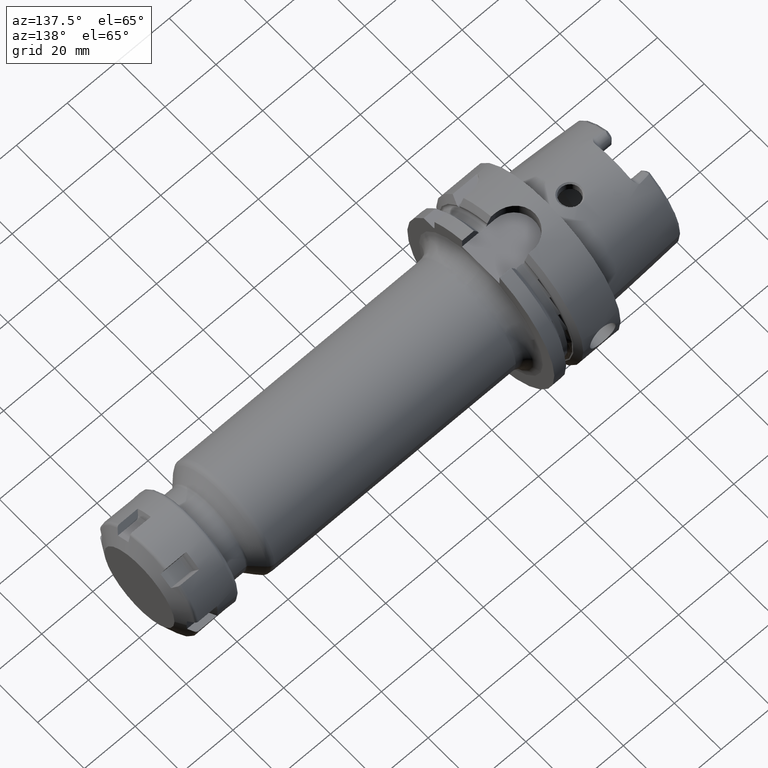
[diagram: clean part render]
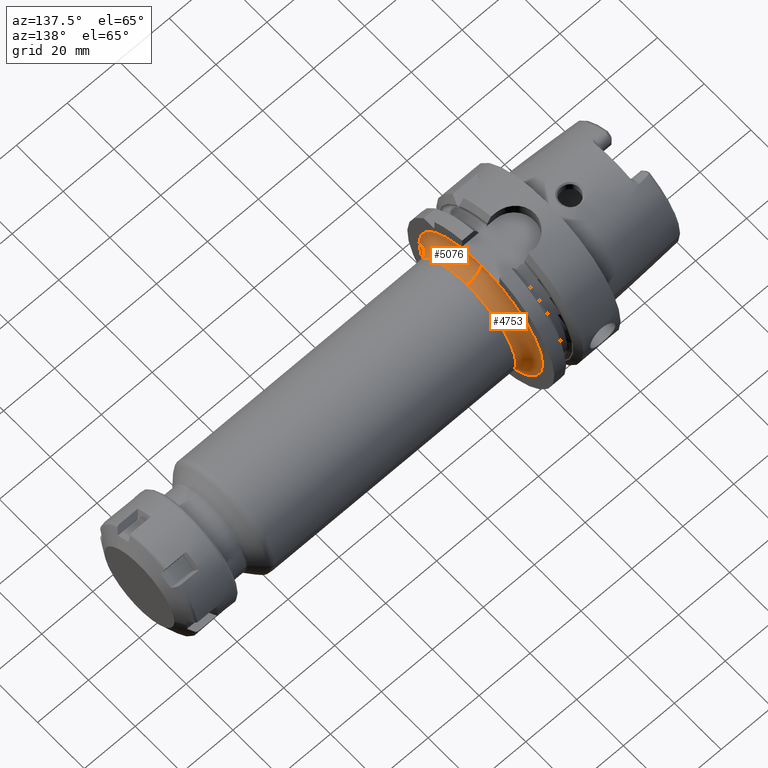
[diagram: same view with one multi-face feature highlighted, each face labeled with its STEP entity id]
A machine part, auxiliary view. The highlighted faces form ONE feature: a constant-radius fillet chain: 2 tangent blend faces with common blend radius 5.5 mm. The faces share edges in the B-rep.
Their STEP definitions:
[1] entity #5076 (Torus):
#1489=CARTESIAN_POINT('',(3.15E1,-2.65E1,2.406547183753E-13));
#1490=DIRECTION('',(0.E0,0.E0,-1.E0));
#1491=DIRECTION('',(-1.E0,0.E0,0.E0));
#1492=AXIS2_PLACEMENT_3D('',#1489,#1490,#1491);
#1533=CARTESIAN_POINT('',(2.6E1,0.E0,0.E0));
#1534=DIRECTION('',(1.E0,0.E0,0.E0));
#1535=DIRECTION('',(0.E0,-8.679259787089E-2,9.962264024582E-1));
#1536=AXIS2_PLACEMENT_3D('',#1533,#1534,#1535);
#1792=CARTESIAN_POINT('',(2.600090916605E1,2.499095562468E-5,2.64E1));
#1793=CARTESIAN_POINT('',(2.600090917046E1,-2.557801868931E-1,2.64E1));
#1794=CARTESIAN_POINT('',(2.600076640443E1,-7.672271111357E-1,
2.640000004521E1));
#1795=CARTESIAN_POINT('',(2.600026065582E1,-1.534030469007E0,2.639999984178E1));
#1796=CARTESIAN_POINT('',(2.6E1,-2.044741514307E0,2.640000033905E1));
#1797=CARTESIAN_POINT('',(2.6E1,-2.299997399233E0,2.640000033905E1));
#1819=CARTESIAN_POINT('',(3.15E1,2.508561832536E-5,2.649999999999E1));
#1820=DIRECTION('',(0.E0,-9.999999999996E-1,9.466271066177E-7));
#1821=DIRECTION('',(-9.998346970813E-1,-1.721140193647E-8,-1.818181817966E-2));
#1822=AXIS2_PLACEMENT_3D('',#1819,#1820,#1821);
#1829=CARTESIAN_POINT('',(3.15E1,0.E0,0.E0));
#1830=DIRECTION('',(1.E0,0.E0,0.E0));
#1831=DIRECTION('',(0.E0,8.220678666068E-7,9.999999999997E-1));
#1832=AXIS2_PLACEMENT_3D('',#1829,#1830,#1831);
#3155=CARTESIAN_POINT('',(2.6E1,-2.65E1,0.E0));
#3157=VERTEX_POINT('',#3155);
#3159=CARTESIAN_POINT('',(3.15E1,1.726342519874E-5,2.099999999999E1));
#3160=CARTESIAN_POINT('',(3.15E1,-2.1E1,0.E0));
#3161=VERTEX_POINT('',#3159);
#3162=VERTEX_POINT('',#3160);
#3163=CARTESIAN_POINT('',(2.6E1,-2.300003843579E0,2.639999966514E1));
#3164=VERTEX_POINT('',#3163);
#3199=VERTEX_POINT('',#1792);
#5063=CARTESIAN_POINT('',(3.15E1,0.E0,0.E0));
#5064=DIRECTION('',(1.E0,0.E0,0.E0));
#5065=DIRECTION('',(0.E0,1.485959642860E-3,-9.999988959614E-1));
#5066=AXIS2_PLACEMENT_3D('',#5063,#5064,#5065);
#5067=TOROIDAL_SURFACE('',#5066,2.65E1,5.5E0);
#5069=ORIENTED_EDGE('',*,*,#5068,.T.);
#5070=ORIENTED_EDGE('',*,*,#4739,.F.);
#5071=ORIENTED_EDGE('',*,*,#4779,.F.);
#5072=ORIENTED_EDGE('',*,*,#5039,.F.);
#5073=ORIENTED_EDGE('',*,*,#4745,.T.);
#5074=EDGE_LOOP('',(#5069,#5070,#5071,#5072,#5073));
#5075=FACE_OUTER_BOUND('',#5074,.F.);
#5076=ADVANCED_FACE('',(#5075),#5067,.F.);
#1493=CIRCLE('',#1492,5.5E0);
#1537=CIRCLE('',#1536,2.65E1);
#1798=B_SPLINE_CURVE_WITH_KNOTS('',3,(#1792,#1793,#1794,#1795,#1796,#1797),
.UNSPECIFIED.,.F.,.F.,(4,1,1,4),(0.E0,3.333333333333E-1,6.666666666667E-1,1.E0),
.UNSPECIFIED.);
#1823=CIRCLE('',#1822,5.5E0);
#1833=CIRCLE('',#1832,2.1E1);
#4739=EDGE_CURVE('',#3157,#3162,#1493,.T.);
#4745=EDGE_CURVE('',#3199,#3161,#1823,.T.);
#4779=EDGE_CURVE('',#3164,#3157,#1537,.T.);
#5039=EDGE_CURVE('',#3199,#3164,#1798,.T.);
#5068=EDGE_CURVE('',#3161,#3162,#1833,.T.);
[2] entity #4753 (Torus):
#1482=CARTESIAN_POINT('',(2.6E1,2.299997398150E0,-2.640000033905E1));
#1483=CARTESIAN_POINT('',(2.6E1,1.789183394985E0,-2.640000033905E1));
#1484=CARTESIAN_POINT('',(2.600095716189E1,7.673460167632E-1,
-2.639999988969E1));
#1485=CARTESIAN_POINT('',(2.600095716189E1,-7.673460625298E-1,
-2.639999987750E1));
#1486=CARTESIAN_POINT('',(2.6E1,-1.789183246253E0,-2.640000035937E1));
#1487=CARTESIAN_POINT('',(2.6E1,-2.299997250847E0,-2.640000035937E1));
#1489=CARTESIAN_POINT('',(3.15E1,-2.65E1,2.406547183753E-13));
#1490=DIRECTION('',(0.E0,0.E0,-1.E0));
#1491=DIRECTION('',(-1.E0,0.E0,0.E0));
#1492=AXIS2_PLACEMENT_3D('',#1489,#1490,#1491);
#1494=CARTESIAN_POINT('',(3.15E1,0.E0,0.E0));
#1495=DIRECTION('',(1.E0,0.E0,0.E0));
#1496=DIRECTION('',(0.E0,-1.E0,0.E0));
#1497=AXIS2_PLACEMENT_3D('',#1494,#1495,#1496);
#1499=CARTESIAN_POINT('',(2.6E1,0.E0,0.E0));
#1500=DIRECTION('',(-1.E0,0.E0,0.E0));
#1501=DIRECTION('',(0.E0,8.679260726051E-2,9.962264016402E-1));
#1502=AXIS2_PLACEMENT_3D('',#1499,#1500,#1501);
#1504=CARTESIAN_POINT('',(2.6E1,0.E0,0.E0));
#1505=DIRECTION('',(1.E0,0.E0,0.E0));
#1506=DIRECTION('',(0.E0,-1.E0,0.E0));
#1507=AXIS2_PLACEMENT_3D('',#1504,#1505,#1506);
#1792=CARTESIAN_POINT('',(2.600090916605E1,2.499095562468E-5,2.64E1));
#1812=CARTESIAN_POINT('',(2.6E1,2.299997249471E0,2.640000035938E1));
#1813=CARTESIAN_POINT('',(2.6E1,2.044741080673E0,2.640000035938E1));
#1814=CARTESIAN_POINT('',(2.600026065455E1,1.534033628626E0,2.639999983229E1));
#1815=CARTESIAN_POINT('',(2.600076638875E1,7.672510938520E-1,2.640000004792E1));
#1816=CARTESIAN_POINT('',(2.600090916165E1,2.558206428930E-1,2.64E1));
#1817=CARTESIAN_POINT('',(2.600090916605E1,2.499095562468E-5,2.64E1));
#1819=CARTESIAN_POINT('',(3.15E1,2.508561832536E-5,2.649999999999E1));
#1820=DIRECTION('',(0.E0,-9.999999999996E-1,9.466271066177E-7));
#1821=DIRECTION('',(-9.998346970813E-1,-1.721140193647E-8,-1.818181817966E-2));
#1822=AXIS2_PLACEMENT_3D('',#1819,#1820,#1821);
#1834=CARTESIAN_POINT('',(3.15E1,0.E0,0.E0));
#1835=DIRECTION('',(1.E0,0.E0,0.E0));
#1836=DIRECTION('',(0.E0,1.E0,0.E0));
#1837=AXIS2_PLACEMENT_3D('',#1834,#1835,#1836);
#3155=CARTESIAN_POINT('',(2.6E1,-2.65E1,0.E0));
#3156=CARTESIAN_POINT('',(2.6E1,-2.300004096480E0,-2.639999964311E1));
#3157=VERTEX_POINT('',#3155);
#3158=VERTEX_POINT('',#3156);
#3159=CARTESIAN_POINT('',(3.15E1,1.726342519874E-5,2.099999999999E1));
#3160=CARTESIAN_POINT('',(3.15E1,-2.1E1,0.E0));
#3161=VERTEX_POINT('',#3159);
#3162=VERTEX_POINT('',#3160);
#3165=CARTESIAN_POINT('',(3.15E1,2.1E1,0.E0));
#3166=VERTEX_POINT('',#3165);
#3175=CARTESIAN_POINT('',(2.6E1,2.300004092403E0,2.639999964346E1));
#3176=CARTESIAN_POINT('',(2.6E1,2.300003840352E0,-2.639999966542E1));
#3177=VERTEX_POINT('',#3175);
#3178=VERTEX_POINT('',#3176);
#3199=VERTEX_POINT('',#1792);
#4731=CARTESIAN_POINT('',(3.15E1,0.E0,0.E0));
#4732=DIRECTION('',(1.E0,0.E0,0.E0));
#4733=DIRECTION('',(0.E0,9.999932980240E-1,-3.661134678175E-3));
#4734=AXIS2_PLACEMENT_3D('',#4731,#4732,#4733);
#4735=TOROIDAL_SURFACE('',#4734,2.65E1,5.5E0);
#4736=ORIENTED_EDGE('',*,*,#4705,.T.);
#4738=ORIENTED_EDGE('',*,*,#4737,.F.);
#4740=ORIENTED_EDGE('',*,*,#4739,.T.);
#4742=ORIENTED_EDGE('',*,*,#4741,.T.);
#4744=ORIENTED_EDGE('',*,*,#4743,.T.);
#4746=ORIENTED_EDGE('',*,*,#4745,.F.);
#4748=ORIENTED_EDGE('',*,*,#4747,.F.);
#4750=ORIENTED_EDGE('',*,*,#4749,.T.);
#4751=EDGE_LOOP('',(#4736,#4738,#4740,#4742,#4744,#4746,#4748,#4750));
#4752=FACE_OUTER_BOUND('',#4751,.F.);
#4753=ADVANCED_FACE('',(#4752),#4735,.F.);
#1488=B_SPLINE_CURVE_WITH_KNOTS('',3,(#1482,#1483,#1484,#1485,#1486,#1487),
.UNSPECIFIED.,.F.,.F.,(4,1,1,4),(0.E0,3.333333333333E-1,6.666666666667E-1,1.E0),
.UNSPECIFIED.);
#1493=CIRCLE('',#1492,5.5E0);
#1498=CIRCLE('',#1497,2.1E1);
#1503=CIRCLE('',#1502,2.65E1);
#1508=CIRCLE('',#1507,2.65E1);
#1818=B_SPLINE_CURVE_WITH_KNOTS('',3,(#1812,#1813,#1814,#1815,#1816,#1817),
.UNSPECIFIED.,.F.,.F.,(4,1,1,4),(0.E0,3.333333333333E-1,6.666666666667E-1,1.E0),
.UNSPECIFIED.);
#1823=CIRCLE('',#1822,5.5E0);
#1838=CIRCLE('',#1837,2.1E1);
#4705=EDGE_CURVE('',#3178,#3158,#1488,.T.);
#4737=EDGE_CURVE('',#3157,#3158,#1508,.T.);
#4739=EDGE_CURVE('',#3157,#3162,#1493,.T.);
#4741=EDGE_CURVE('',#3162,#3166,#1498,.T.);
#4743=EDGE_CURVE('',#3166,#3161,#1838,.T.);
#4745=EDGE_CURVE('',#3199,#3161,#1823,.T.);
#4747=EDGE_CURVE('',#3177,#3199,#1818,.T.);
#4749=EDGE_CURVE('',#3177,#3178,#1503,.T.);